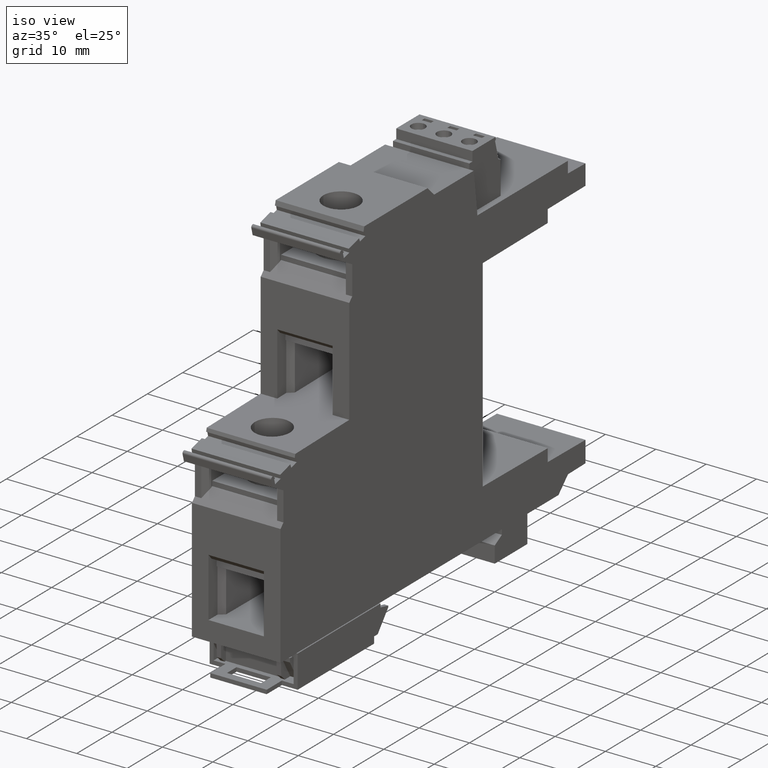
[diagram: clean part render]
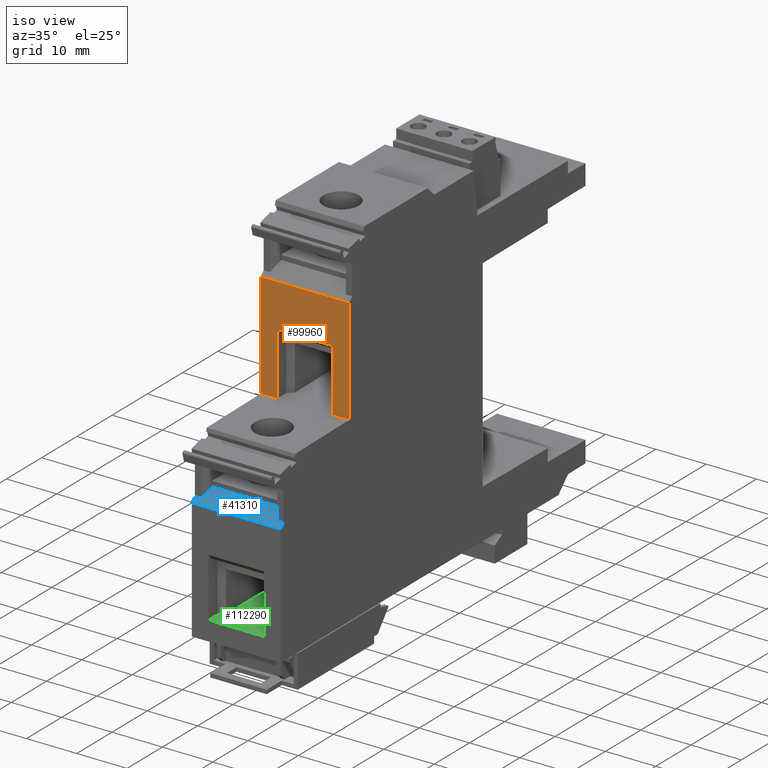
[diagram: same view with three faces highlighted in distinct colors, each labeled with its STEP entity id]
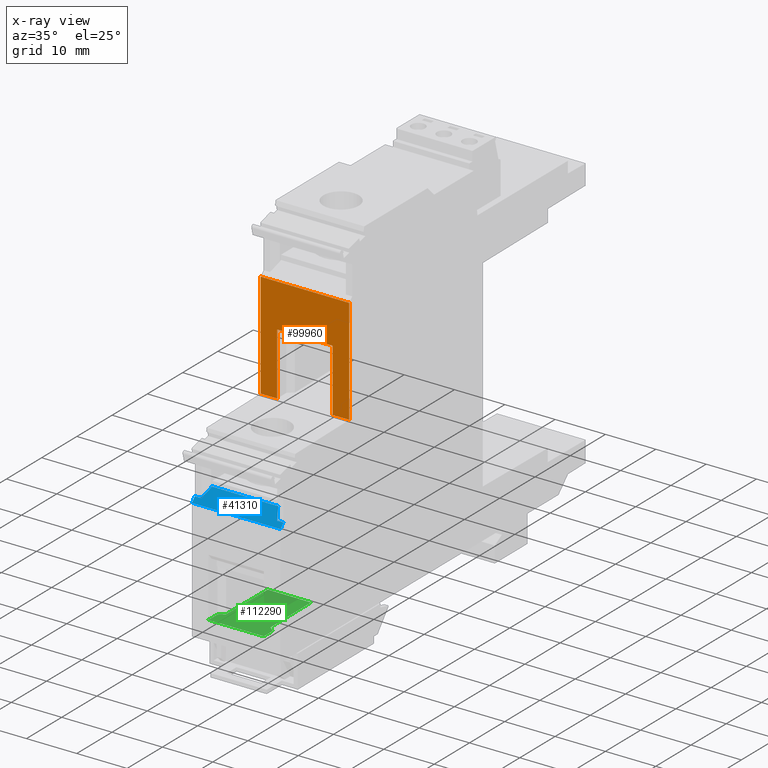
[diagram: x-ray of the same camera — body ghosted, the three highlighted faces saturated]
A machine part, iso view with three faces highlighted in distinct colors.
The next image is the same camera in x-ray (body ghosted, the three faces saturated) — at least one of them is partly hidden behind the body in this view.
Their STEP definitions:

[orange] entity #99960 — the highlighted planar face has unit normal (0, 1, 0).
#31640=CARTESIAN_POINT('',(-6.39301882384896,10.8414770358341,
17.5999999999704));
#31650=VERTEX_POINT('',#31640);
#31680=CARTESIAN_POINT('',(-1.99322437837998,10.8414770358342,
17.5999999999704));
#31690=DIRECTION('',(1.,1.25038868148408E-14,6.24505735487405E-17));
#31700=VECTOR('',#31690,1.);
#31710=LINE('',#31680,#31700);
#31720=CARTESIAN_POINT('',(-27.3831701582295,10.8414770358339,
17.5999999999704));
#31730=VERTEX_POINT('',#31720);
#31740=EDGE_CURVE('',#31730,#31650,#31710,.T.);
#33530=CARTESIAN_POINT('',(-6.39301882384896,10.8414770358341,
1.66405466160457E-11));
#33540=VERTEX_POINT('',#33530);
#33570=CARTESIAN_POINT('',(-6.39301882384897,10.8414770358341,
0.00053664395458927));
#33580=DIRECTION('',(-5.89719555765714E-17,1.00734562034959E-30,1.));
#33590=VECTOR('',#33580,1.);
#33600=LINE('',#33570,#33590);
#33610=CARTESIAN_POINT('',(-6.39301882384896,10.8414770358341,
3.30053664442633));
#33620=VERTEX_POINT('',#33610);
#33630=EDGE_CURVE('',#33540,#33620,#33600,.T.);
#34170=CARTESIAN_POINT('',(-6.39301882384896,10.8414770358341,
14.3005366434828));
#34180=VERTEX_POINT('',#34170);
#34210=CARTESIAN_POINT('',(-6.39301882384896,10.8414770358341,
-3.04043706062934E-11));
#34220=DIRECTION('',(-5.89719555765714E-17,1.00735765741174E-30,1.));
#34230=VECTOR('',#34220,1.);
#34240=LINE('',#34210,#34230);
#34250=EDGE_CURVE('',#34180,#31650,#34240,.T.);
#42790=CARTESIAN_POINT('',(-27.3831701582295,10.8414770358339,
1.66392357801475E-11));
#42800=VERTEX_POINT('',#42790);
#42830=CARTESIAN_POINT('',(-28.6243628162099,10.8414770358339,
-3.04061401282661E-11));
#42840=DIRECTION('',(1.,1.25038868148408E-14,5.89811265967868E-17));
#42850=VECTOR('',#42840,1.);
#42860=LINE('',#42830,#42850);
#42870=EDGE_CURVE('',#42800,#33540,#42860,.T.);
#83330=CARTESIAN_POINT('',(-28.6243628162099,10.8414770358339,
14.3005366434828));
#83340=DIRECTION('',(1.,1.25038868148408E-14,5.8979916241223E-17));
#83350=VECTOR('',#83340,1.);
#83360=LINE('',#83330,#83350);
#83370=CARTESIAN_POINT('',(-18.7982917135072,10.841477035834,
14.3005366434828));
#83380=VERTEX_POINT('',#83370);
#83390=EDGE_CURVE('',#83380,#34180,#83360,.T.);
#99640=CARTESIAN_POINT('',(-26.9689565958564,10.8414770358339,
0.000536643954587612));
#99650=DIRECTION('',(-1.25038868148408E-14,1.,-1.74472752088142E-30));
#99660=DIRECTION('',(-1.,-1.25038868148408E-14,-5.8979916241223E-17));
#99670=AXIS2_PLACEMENT_3D('',#99640,#99650,#99660);
#99680=PLANE('',#99670);
#99690=ORIENTED_EDGE('',*,*,#31740,.F.);
#99700=ORIENTED_EDGE('',*,*,#34250,.T.);
#99710=ORIENTED_EDGE('',*,*,#83390,.T.);
#99720=CARTESIAN_POINT('',(-18.7982917135072,10.841477035834,
0.000536643954588538));
#99730=DIRECTION('',(6.24500451351651E-17,-9.63687195922763E-31,-1.));
#99740=VECTOR('',#99730,1.);
#99750=LINE('',#99720,#99740);
#99760=CARTESIAN_POINT('',(-18.7982917135072,10.841477035834,
3.30053664442633));
#99770=VERTEX_POINT('',#99760);
#99780=EDGE_CURVE('',#83380,#99770,#99750,.T.);
#99790=ORIENTED_EDGE('',*,*,#99780,.F.);
#99800=CARTESIAN_POINT('',(-28.6243628162099,10.8414770358339,
3.30053664442633));
#99810=DIRECTION('',(1.,1.25038868148408E-14,5.8979916241223E-17));
#99820=VECTOR('',#99810,1.);
#99830=LINE('',#99800,#99820);
#99840=EDGE_CURVE('',#99770,#33620,#99830,.T.);
#99850=ORIENTED_EDGE('',*,*,#99840,.F.);
#99860=ORIENTED_EDGE('',*,*,#33630,.T.);
#99870=ORIENTED_EDGE('',*,*,#42870,.T.);
#99880=CARTESIAN_POINT('',(-27.3831701582295,10.8414770358339,
-3.04056086290665E-11));
#99890=DIRECTION('',(5.8979916241223E-17,-1.00724932385237E-30,-1.));
#99900=VECTOR('',#99890,1.);
#99910=LINE('',#99880,#99900);
#99920=EDGE_CURVE('',#31730,#42800,#99910,.T.);
#99930=ORIENTED_EDGE('',*,*,#99920,.T.);
#99940=EDGE_LOOP('',(#99930,#99870,#99860,#99850,#99790,#99710,#99700,
#99690));
#99950=FACE_OUTER_BOUND('',#99940,.T.);
#99960=ADVANCED_FACE('',(#99950),#99680,.F.);

[blue] entity #41310 — the highlighted planar face has unit normal (-0, 0.7071, -0.7071).
#30270=CARTESIAN_POINT('',(5.76148759322794,-8.66541060671737,
17.5999999999704));
#30280=VERTEX_POINT('',#30270);
#30310=CARTESIAN_POINT('',(-24.8733106753327,21.9693876618405,
17.5999999999704));
#30320=DIRECTION('',(0.70710678118658,-0.707106781186515,
4.17487700344457E-17));
#30330=VECTOR('',#30320,1.);
#30340=LINE('',#30310,#30330);
#30350=CARTESIAN_POINT('',(4.91148759322796,-7.81541060671746,
17.5999999999704));
#30360=VERTEX_POINT('',#30350);
#30370=EDGE_CURVE('',#30360,#30280,#30340,.T.);
#40530=CARTESIAN_POINT('',(4.91148759322796,-7.81541060671746,
-5.00172821294476E-10));
#40540=DIRECTION('',(0.707106781186515,0.70710678118658,
4.17050987279807E-17));
#40550=DIRECTION('',(-0.70710678118658,0.707106781186515,
-4.17050987279859E-17));
#40560=AXIS2_PLACEMENT_3D('',#40530,#40540,#40550);
#40570=PLANE('',#40560);
#40580=CARTESIAN_POINT('',(-28.6243628162101,25.7204398027176,
-3.04061410291903E-11));
#40590=DIRECTION('',(0.70710678118658,-0.707106781186515,
4.17050987279859E-17));
#40600=VECTOR('',#40590,1.);
#40610=LINE('',#40580,#40600);
#40620=CARTESIAN_POINT('',(4.91148759322796,-7.81541060671746,
1.66417170093229E-11));
#40630=VERTEX_POINT('',#40620);
#40640=CARTESIAN_POINT('',(5.76148759322794,-8.66541060671736,
1.66418504671819E-11));
#40650=VERTEX_POINT('',#40640);
#40660=EDGE_CURVE('',#40630,#40650,#40610,.T.);
#40670=ORIENTED_EDGE('',*,*,#40660,.T.);
#40680=CARTESIAN_POINT('',(4.91148759322796,-7.81541060671746,
0.000536643954589937));
#40690=DIRECTION('',(-5.8979916241223E-17,1.00724932385237E-30,1.));
#40700=VECTOR('',#40690,1.);
#40710=LINE('',#40680,#40700);
#40720=CARTESIAN_POINT('',(4.91148759322797,-7.81541060671746,
1.26097438758798));
#40730=VERTEX_POINT('',#40720);
#40740=EDGE_CURVE('',#40630,#40730,#40710,.T.);
#40750=ORIENTED_EDGE('',*,*,#40740,.F.);
#40760=CARTESIAN_POINT('',(5.53529701609111,-8.43922002958055,
0.900817849374948));
#40770=DIRECTION('',(0.654653670708011,-0.654653670707952,
-0.377964473009213));
#40780=VECTOR('',#40770,1.);
#40790=LINE('',#40760,#40780);
#40800=CARTESIAN_POINT('',(3.37165006334942,-6.27557307683906,
2.14999999997156));
#40810=VERTEX_POINT('',#40800);
#40820=EDGE_CURVE('',#40810,#40730,#40790,.T.);
#40830=ORIENTED_EDGE('',*,*,#40820,.T.);
#40840=CARTESIAN_POINT('',(5.53529701609111,-8.43922002958055,
2.14999999997157));
#40850=DIRECTION('',(0.70710678118658,-0.707106781186515,
4.17050987279859E-17));
#40860=VECTOR('',#40850,1.);
#40870=LINE('',#40840,#40860);
#40880=CARTESIAN_POINT('',(3.2209225290062,-6.12484554249585,
2.14999999997157));
#40890=VERTEX_POINT('',#40880);
#40900=EDGE_CURVE('',#40890,#40810,#40870,.T.);
#40910=ORIENTED_EDGE('',*,*,#40900,.T.);
#40920=CARTESIAN_POINT('',(3.2209225290062,-6.12484554249587,
-5.00172920999851E-10));
#40930=DIRECTION('',(5.8979916241223E-17,-1.00724932385237E-30,-1.));
#40940=VECTOR('',#40930,1.);
#40950=LINE('',#40920,#40940);
#40960=CARTESIAN_POINT('',(3.2209225290062,-6.12484554249585,
15.4499999990281));
#40970=VERTEX_POINT('',#40960);
#40980=EDGE_CURVE('',#40970,#40890,#40950,.T.);
#40990=ORIENTED_EDGE('',*,*,#40980,.T.);
#41000=CARTESIAN_POINT('',(5.53529701609111,-8.43922002958055,
15.4499999990281));
#41010=DIRECTION('',(0.70710678118658,-0.707106781186515,
4.17050987279859E-17));
#41020=VECTOR('',#41010,1.);
#41030=LINE('',#41000,#41020);
#41040=CARTESIAN_POINT('',(3.37165006334942,-6.27557307683906,
15.4499999990281));
#41050=VERTEX_POINT('',#41040);
#41060=EDGE_CURVE('',#40970,#41050,#41030,.T.);
#41070=ORIENTED_EDGE('',*,*,#41060,.F.);
#41080=CARTESIAN_POINT('',(5.53529701609111,-8.43922002958055,
16.6991821496247));
#41090=DIRECTION('',(0.654653670708011,-0.654653670707952,
0.377964473009213));
#41100=VECTOR('',#41090,1.);
#41110=LINE('',#41080,#41100);
#41120=CARTESIAN_POINT('',(4.91148759322796,-7.81541060671746,
16.3390256114117));
#41130=VERTEX_POINT('',#41120);
#41140=EDGE_CURVE('',#41050,#41130,#41110,.T.);
#41150=ORIENTED_EDGE('',*,*,#41140,.F.);
#41160=CARTESIAN_POINT('',(4.91148759322796,-7.81541060671746,
-3.0403702724091E-11));
#41170=DIRECTION('',(5.8979916241223E-17,-1.00724932385237E-30,-1.));
#41180=VECTOR('',#41170,1.);
#41190=LINE('',#41160,#41180);
#41200=EDGE_CURVE('',#30360,#41130,#41190,.T.);
#41210=ORIENTED_EDGE('',*,*,#41200,.T.);
#41220=ORIENTED_EDGE('',*,*,#30370,.F.);
#41230=CARTESIAN_POINT('',(5.76148759322794,-8.66541060671737,
-3.04036525386658E-11));
#41240=DIRECTION('',(5.8979916241223E-17,-1.00724932385237E-30,-1.));
#41250=VECTOR('',#41240,1.);
#41260=LINE('',#41230,#41250);
#41270=EDGE_CURVE('',#30280,#40650,#41260,.T.);
#41280=ORIENTED_EDGE('',*,*,#41270,.F.);
#41290=EDGE_LOOP('',(#41280,#41220,#41210,#41150,#41070,#40990,#40910,
#40830,#40750,#40670));
#41300=FACE_OUTER_BOUND('',#41290,.T.);
#41310=ADVANCED_FACE('',(#41300),#40570,.F.);

[green] entity #112290 — the highlighted planar face has unit normal (0, -0, 1).
#111250=CARTESIAN_POINT('',(25.9201621144345,-8.66541060671711,
3.29999999997157));
#111260=VERTEX_POINT('',#111250);
#111290=CARTESIAN_POINT('',(25.9201621144345,-8.66541060671704,
-0.387681406625009));
#111300=DIRECTION('',(-5.8979916241223E-17,1.00724932385237E-30,1.));
#111310=VECTOR('',#111300,1.);
#111320=LINE('',#111290,#111310);
#111330=CARTESIAN_POINT('',(25.9201621144345,-8.66541060671711,
14.2999999990281));
#111340=VERTEX_POINT('',#111330);
#111350=EDGE_CURVE('',#111260,#111340,#111320,.T.);
#111670=CARTESIAN_POINT('',(25.9201621144345,-8.66541060671705,
13.9123185938467));
#111680=DIRECTION('',(-1.,-1.25038868148408E-14,-5.8979916241223E-17));
#111690=DIRECTION('',(-5.8979916241223E-17,1.00724932385237E-30,1.));
#111700=AXIS2_PLACEMENT_3D('',#111670,#111680,#111690);
#111710=PLANE('',#111700);
#111720=CARTESIAN_POINT('',(25.9201621144335,71.5901406642911,
12.5364559083008));
#111730=DIRECTION('',(-1.25033721139458E-14,0.999961923064171,
-0.00872653549837336));
#111740=VECTOR('',#111730,1.);
#111750=LINE('',#111720,#111740);
#111760=CARTESIAN_POINT('',(25.9201621144344,-5.23185101165251,
13.2068712730795));
#111770=VERTEX_POINT('',#111760);
#111780=CARTESIAN_POINT('',(25.9201621144343,6.43747371871509,
13.1050346189502));
#111790=VERTEX_POINT('',#111780);
#111800=EDGE_CURVE('',#111770,#111790,#111750,.T.);
#111810=ORIENTED_EDGE('',*,*,#111800,.T.);
#111820=CARTESIAN_POINT('',(25.9201621144345,-8.79787206811409,
17.5999999994998));
#111830=DIRECTION('',(-7.86628037571824E-15,0.630231031198721,
-0.776407655368104));
#111840=VECTOR('',#111830,1.);
#111850=LINE('',#111820,#111840);
#111860=CARTESIAN_POINT('',(25.9201621144344,-6.11917307683863,
14.2999999990281));
#111870=VERTEX_POINT('',#111860);
#111880=EDGE_CURVE('',#111870,#111770,#111850,.T.);
#111890=ORIENTED_EDGE('',*,*,#111880,.T.);
#111900=CARTESIAN_POINT('',(25.9201621144335,71.5901406642911,
14.2999999990281));
#111910=DIRECTION('',(1.25038868148408E-14,-1.,1.74468789955824E-30));
#111920=VECTOR('',#111910,1.);
#111930=LINE('',#111900,#111920);
#111940=EDGE_CURVE('',#111870,#111340,#111930,.T.);
#111950=ORIENTED_EDGE('',*,*,#111940,.F.);
#111960=ORIENTED_EDGE('',*,*,#111350,.T.);
#111970=CARTESIAN_POINT('',(25.9201621144335,71.5901406642911,
3.29999999997157));
#111980=DIRECTION('',(1.25038868148408E-14,-1.,1.74468789955824E-30));
#111990=VECTOR('',#111980,1.);
#112000=LINE('',#111970,#111990);
#112010=CARTESIAN_POINT('',(25.9201621144344,-6.11917307683862,
3.29999999997157));
#112020=VERTEX_POINT('',#112010);
#112030=EDGE_CURVE('',#112020,#111260,#112000,.T.);
#112040=ORIENTED_EDGE('',*,*,#112030,.T.);
#112050=CARTESIAN_POINT('',(25.9201621144345,-8.79787206811407,
-5.00171138030486E-10));
#112060=DIRECTION('',(-7.9578671721422E-15,0.630231031198721,
0.776407655368104));
#112070=VECTOR('',#112060,1.);
#112080=LINE('',#112050,#112070);
#112090=CARTESIAN_POINT('',(25.9201621144344,-5.23185101165251,
4.39312872592016));
#112100=VERTEX_POINT('',#112090);
#112110=EDGE_CURVE('',#112020,#112100,#112080,.T.);
#112120=ORIENTED_EDGE('',*,*,#112110,.F.);
#112130=CARTESIAN_POINT('',(25.9201621144335,71.5901406642911,
5.06354409069885));
#112140=DIRECTION('',(-1.25044015157358E-14,0.999961923064171,
0.00872653549837336));
#112150=VECTOR('',#112140,1.);
#112160=LINE('',#112130,#112150);
#112170=CARTESIAN_POINT('',(25.9201621144343,6.43747371871509,
4.4949653800495));
#112180=VERTEX_POINT('',#112170);
#112190=EDGE_CURVE('',#112100,#112180,#112160,.T.);
#112200=ORIENTED_EDGE('',*,*,#112190,.F.);
#112210=CARTESIAN_POINT('',(25.9201621144343,6.43747371871509,
-5.00171138085627E-10));
#112220=DIRECTION('',(5.8979916241223E-17,-1.00724932385237E-30,-1.));
#112230=VECTOR('',#112220,1.);
#112240=LINE('',#112210,#112230);
#112250=EDGE_CURVE('',#111790,#112180,#112240,.T.);
#112260=ORIENTED_EDGE('',*,*,#112250,.T.);
#112270=EDGE_LOOP('',(#112260,#112200,#112120,#112040,#111960,#111950,
#111890,#111810));
#112280=FACE_OUTER_BOUND('',#112270,.T.);
#112290=ADVANCED_FACE('',(#112280),#111710,.T.);